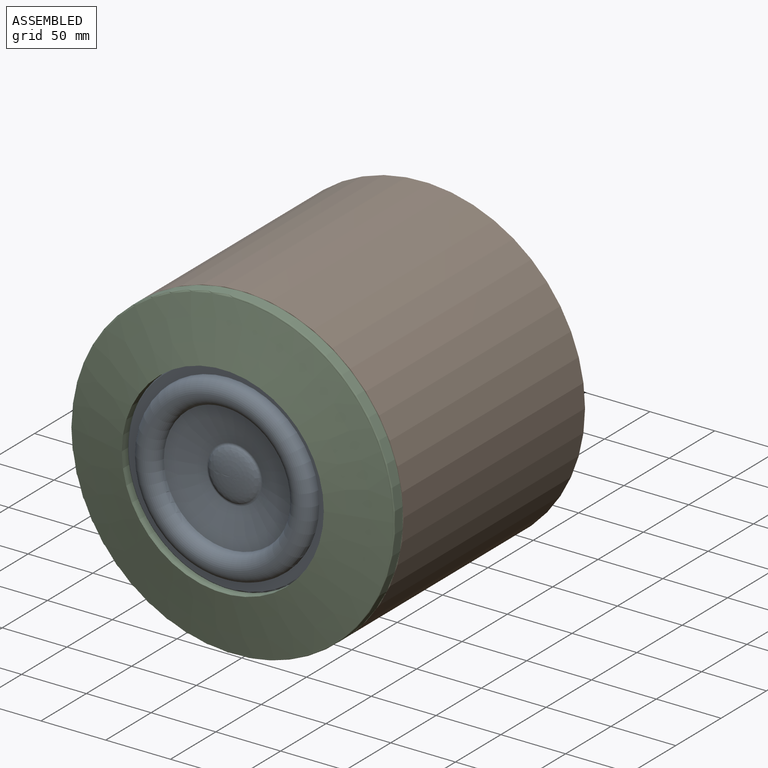
[diagram: assembled view]
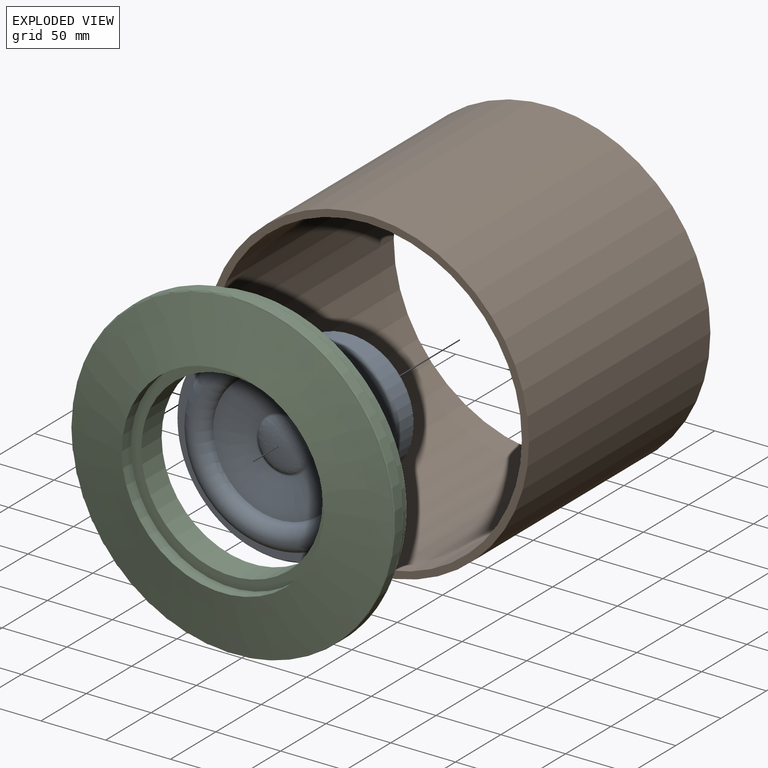
[diagram: exploded view]
GUIDED TOUR — MATED ASSEMBLY (Onshape document 9731b286837dd02903fe42f7, AutoMate assembly 9731b286837dd02903fe42f7_840724efcdd1993359b0b971_bc8ccb5cda9fbec38172dbe1_default)

This assembly has 3 components, labeled P0..P2 below (a component is one placed occurrence of a part; the same part can appear more than once), held together by 2 mates. A mate is a constraint between two components; its type names the relative motion it leaves free:
  FASTENED — locks the two components together rigidly (no relative motion).
Axis/direction vectors are unit vectors and 'through' points are millimeter coordinates, both in the assembly's world frame.

MATES
  1. FASTENED "Fastened 3": P0 <-> P2, direction (0.000, 1.000, 0.000) through (0.00, -10.92, 0.00) mm
  2. FASTENED "Fastened 2": P2 <-> P1, direction (0.000, 1.000, 0.000) through (0.00, 0.00, 0.00) mm

ASSEMBLY ORDER
  1. P2 — the base component [order heuristic]
  2. P0 [order heuristic]
  3. P1 [order heuristic]
Order-tag legend:
  [order heuristic] — this assembly is geometrically interlocked (no collision-free removal order exists), so components are listed in mate-graph order; insertion feasibility is not verified.

Of the 3 components, 2 carry the full construction recipe — the FeatureScript program that regenerates the part's solid from scratch; the rest are supplied as boundary geometry only.
Each toured component is shown spotlighted twice — in the assembled view, then in the exploded view, where a leader line traces a displaced component back to its assembled socket (saturated green if recipe-attached, orange if geometry-only; every other component desaturated gray) — followed by its recipe or geometry summary and the mates that hold it.
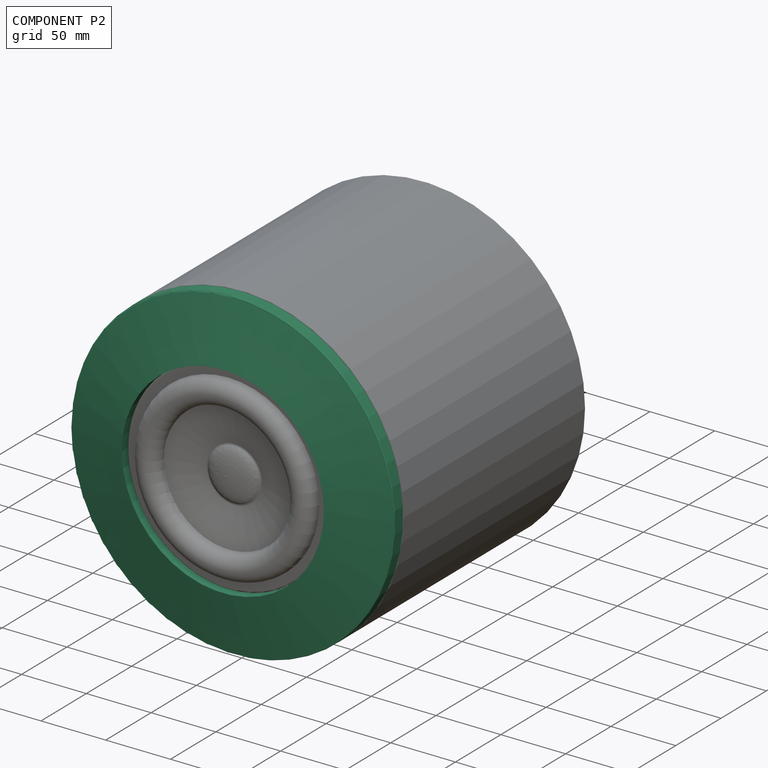
[diagram: component P2 — assembled]
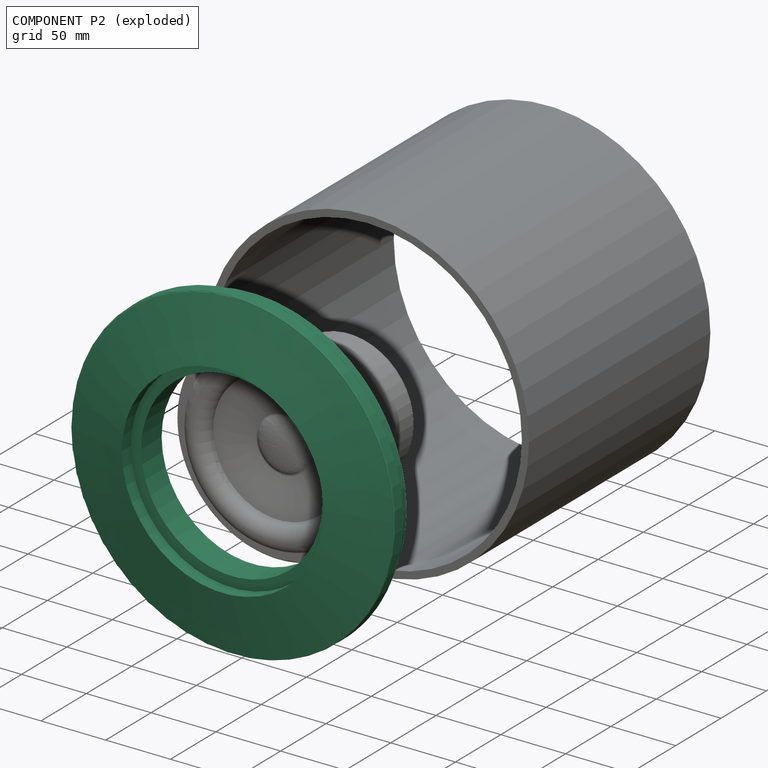
[diagram: component P2 — exploded]
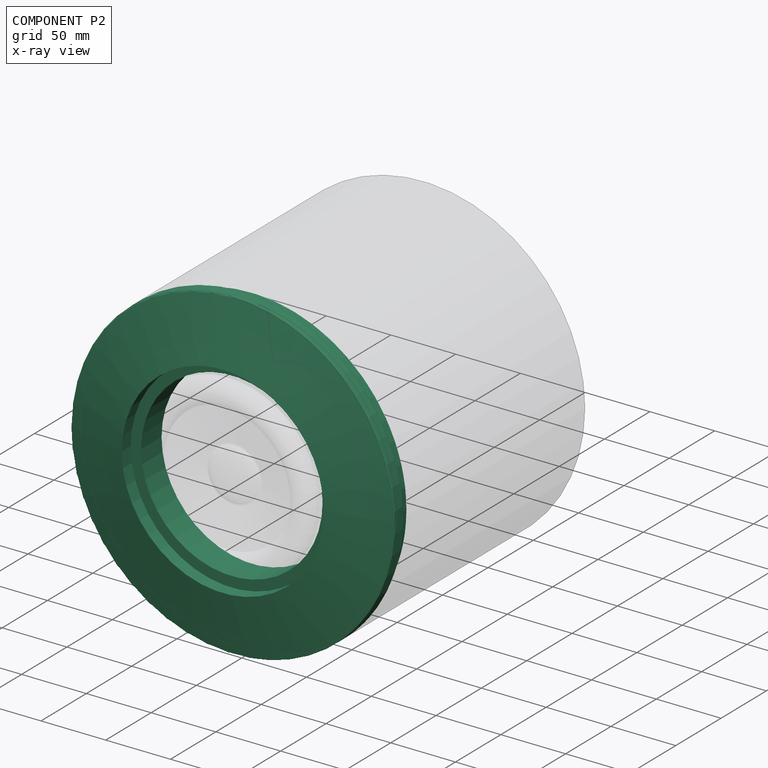
[diagram: component P2 — x-ray view]
COMPONENT P2 — recipe-attached (CADFS 00306409, mesh-verified: the recipe's output STEP matches this component's geometry to below the mesh-comparison resolution (tessellation chordal tolerance ~0.532 mm)).
Held by: FASTENED mate "Fastened 3" to P0; FASTENED mate "Fastened 2" to P1.
Construction recipe (FeatureScript — the CAD program that rebuilds this solid; sketch coordinates are in the units given by the * unit suffixes, e.g. mm):

FeatureScript 1511;
import(path : "onshape/std/geometry.fs", version : "1511.0");
import(path : "onshape/std/common.fs", version : "1511.0");
const mm = millimeter;
const VERTEX = EntityType.VERTEX;
const EDGE = EntityType.EDGE;
const FACE = EntityType.FACE;
const BODY = EntityType.BODY;
function v(x, y){return vector(x, y);}
function OD(order){return orderDisambiguation(order);}
function OSD(set){return originalSetDisambiguation(set);}
function TD(topology){return topologyDisambiguation(topology);}
function TDD(query){return trueDependencyDisambiguation(query);}
function sQuery(a, b, c) {return sketchEntityQuery(a, b, c);}

annotation { "Feature Type Name" : "Feature", "Feature Type Description" : "" }
export const myFeature = defineFeature(function(context is Context, id is Id, definition is map)
    precondition{}
    {
        {
            var Q0;
            Q0=qCreatedBy(makeId("Front.planeOp"),FACE);
            var sketch = newSketch(context, id + "F0", { "sketchPlane" : qUnion([Q0])});
            skLineSegment(sketch, "E0.right", {"start": v(-125, 4) * mm, "end": v(-125, -4) * mm});
            skPoint(sketch, "E0.middle", {"position": v(0, 0) * mm});
            skLineSegment(sketch, "E1.top", {"start": v(-118.53, 16.6) * mm, "end": v(-70, 16.6) * mm});
            skLineSegment(sketch, "E1.right", {"start": v(0, 5) * mm, "end": v(0, 16.6) * mm});
            skPoint(sketch, "E2.endSnap0", {"position": v(0, -5) * mm});
            skArc(sketch, "E3", {"start": v(-119.93, 9) * mm, "mid": v(-119.77, 12.35) * mm, "end": v(-119.52, 15.69) * mm});
            skPoint(sketch, "E4.visualSharp", {"position": v(-125, -5) * mm});
            skArc(sketch, "E4.filletArc", {"start": v(-125, -4) * mm, "mid": v(-124.7, -4.7) * mm, "end": v(-124, -5) * mm});
            skArc(sketch, "E5.filletArc", {"start": v(-124, 5) * mm, "mid": v(-124.7, 4.7) * mm, "end": v(-125, 4) * mm});
            skPoint(sketch, "E0.left.start.orphan", {"position": v(125, 5) * mm});
            skPoint(sketch, "E6.visualSharp", {"position": v(-119.44, 16.6) * mm});
            skArc(sketch, "E6.filletArc", {"start": v(-118.53, 16.6) * mm, "mid": v(-119.2, 16.34) * mm, "end": v(-119.52, 15.69) * mm});
            skLineSegment(sketch, "E7", {"start": v(0, -5) * mm, "end": v(0, -15.92) * mm});
            skLineSegment(sketch, "E8", {"start": v(-78, -15.92) * mm, "end": v(-124, -5) * mm});
            skLineSegment(sketch, "E9", {"start": v(-78, -15.92) * mm, "end": v(-78, -5.92) * mm});
            skLineSegment(sketch, "E10", {"start": v(-70, -5.92) * mm, "end": v(-78, -5.92) * mm});
            skLineSegment(sketch, "E11", {"start": v(0, 5) * mm, "end": v(0, -5) * mm});
            skLineSegment(sketch, "E12", {"start": v(-78, -5.92) * mm, "end": v(-70, -5.92) * mm});
            skLineSegment(sketch, "E13", {"start": v(-70, -5.92) * mm, "end": v(-70, 16.6) * mm});
            skPoint(sketch, "E14.orphan", {"position": v(0, -5.92) * mm});
            skArc(sketch, "E15", {"start": v(-122, 5) * mm, "mid": v(-121, 4) * mm, "end": v(-120, 5) * mm});
            skLineSegment(sketch, "E16", {"start": v(-119.93, 9) * mm, "end": v(-120, 5) * mm});
            skLineSegment(sketch, "E17", {"start": v(-124, 5) * mm, "end": v(-122, 5) * mm});
            skSolve(sketch);
        }
        {
            var Q0;
            Q0=makeQuery(id+"F0.imprint","IMPRINT",FACE,{"disambiguationData":[TD([[makeQuery(id+"F0.imprint","IMPRINT",EDGE,{"derivedFrom":sQuery(id+"F0.wireOp",EDGE,"E0.right")}),1.0]])]});
            var Q1;
            Q1=sQuery(id+"F0.wireOp",EDGE,"E1.right");
            revolve(context, id + "F1", {"entities" : qUnion([Q0]), "axis" : qUnion([Q1]), "revolveType" : RevolveType.FULL});
        }
    });
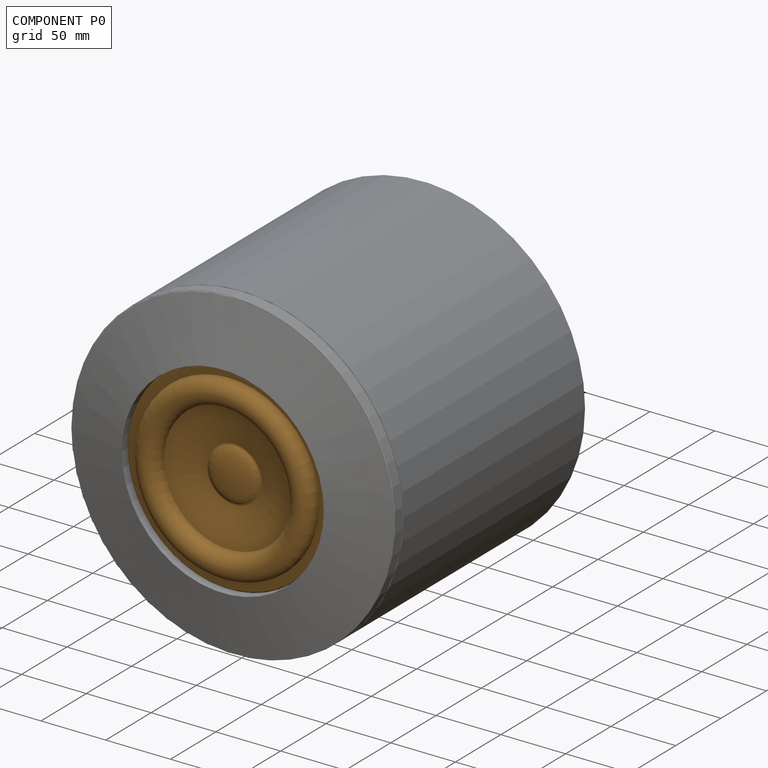
[diagram: component P0 — assembled]
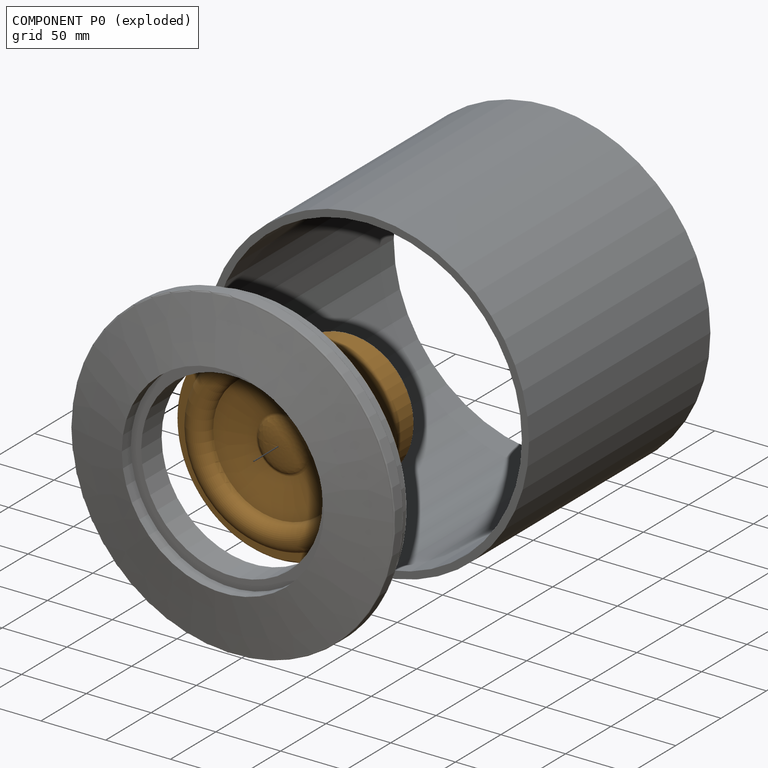
[diagram: component P0 — exploded]
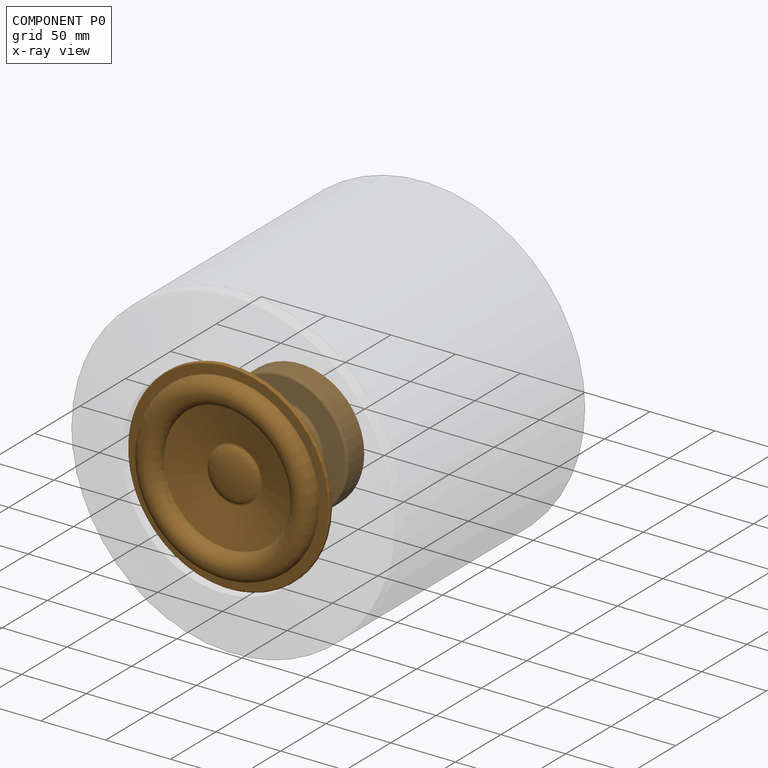
[diagram: component P0 — x-ray view]
COMPONENT P0 — geometry summary (no construction recipe available for this part):
  bounding box: 168.9 x 168.9 x 94.6 mm
  B-rep topology: 1 solid, 24 faces, 87 edges
  volume: 632823 mm^3 (23% of its bounding box)
  symmetry: revolution-symmetric about the z axis through its bounding-box center; mirror-symmetric across its x mid-plane, y mid-plane
Held by: FASTENED mate "Fastened 3" to P2.
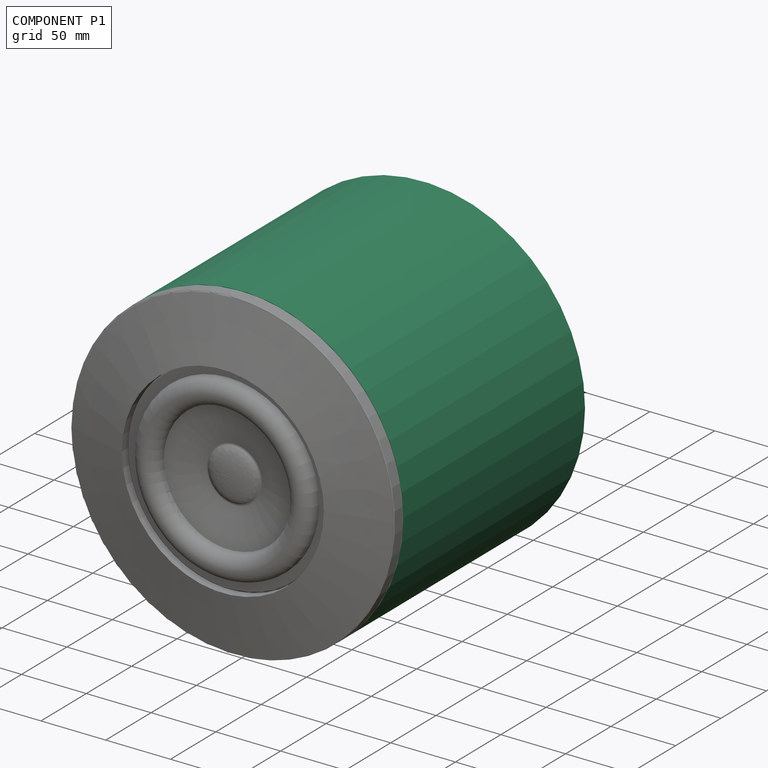
[diagram: component P1 — assembled]
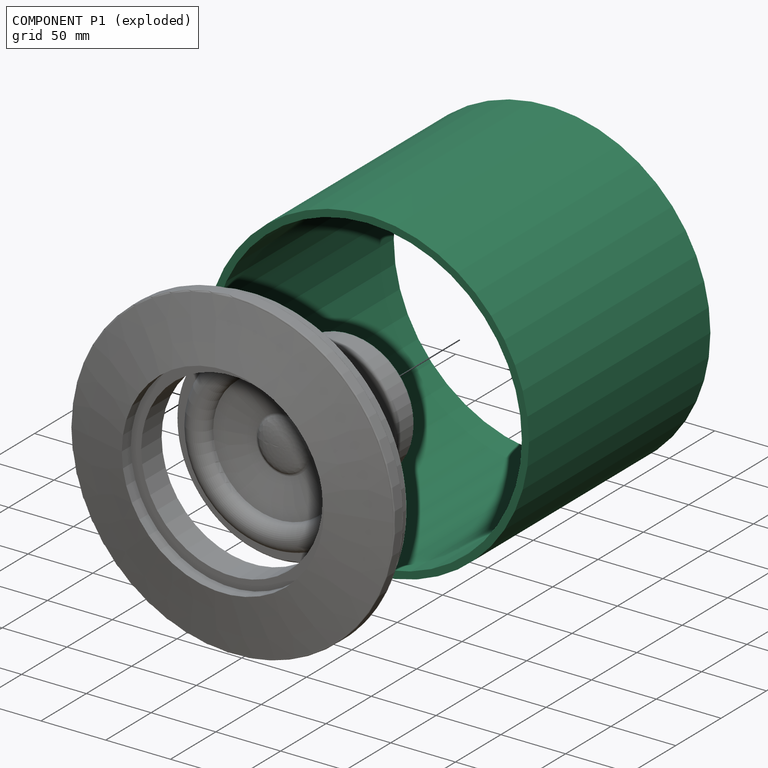
[diagram: component P1 — exploded]
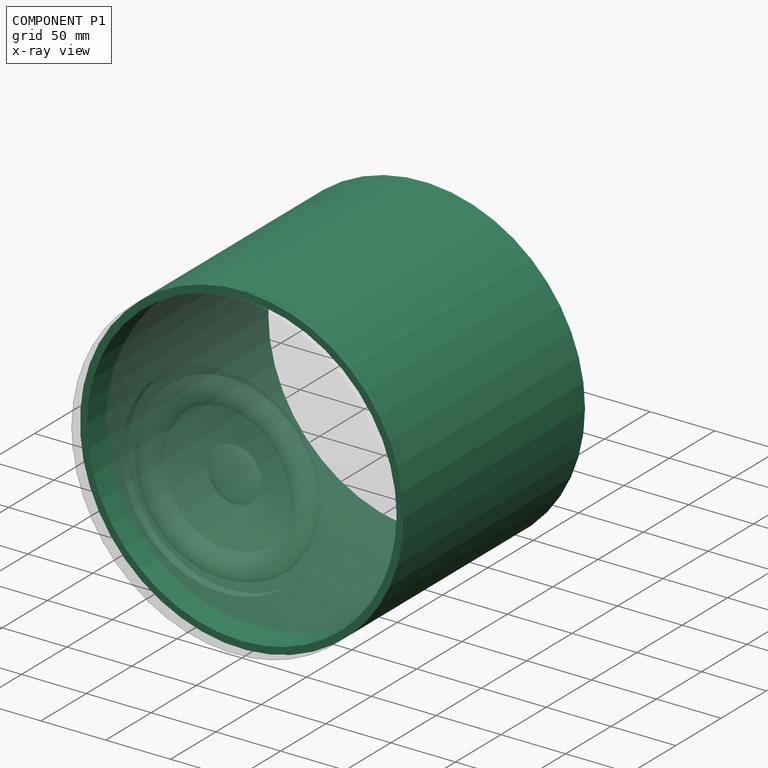
[diagram: component P1 — x-ray view]
COMPONENT P1 — recipe-attached (CADFS 00306408, mesh-verified: the recipe's output STEP matches this component's geometry to below the mesh-comparison resolution (tessellation chordal tolerance ~0.609 mm)).
Held by: FASTENED mate "Fastened 2" to P2.
Construction recipe (FeatureScript — the CAD program that rebuilds this solid; sketch coordinates are in the units given by the * unit suffixes, e.g. mm):

FeatureScript 1511;
import(path : "onshape/std/geometry.fs", version : "1511.0");
import(path : "onshape/std/common.fs", version : "1511.0");
const mm = millimeter;
const VERTEX = EntityType.VERTEX;
const EDGE = EntityType.EDGE;
const FACE = EntityType.FACE;
const BODY = EntityType.BODY;
function v(x, y){return vector(x, y);}
function OD(order){return orderDisambiguation(order);}
function OSD(set){return originalSetDisambiguation(set);}
function TD(topology){return topologyDisambiguation(topology);}
function TDD(query){return trueDependencyDisambiguation(query);}
function sQuery(a, b, c) {return sketchEntityQuery(a, b, c);}

annotation { "Feature Type Name" : "Feature", "Feature Type Description" : "" }
export const myFeature = defineFeature(function(context is Context, id is Id, definition is map)
    precondition{}
    {
        {
            var Q0;
            Q0=qCreatedBy(makeId("Front.planeOp"),FACE);
            var sketch = newSketch(context, id + "F0", { "sketchPlane" : qUnion([Q0])});
            skCircle(sketch, "E0", {"center": v(0, 0) * mm, "radius": 125 * mm});
            skCircle(sketch, "E1.0", {"center": v(0, 0) * mm, "radius": 119.5 * mm});
            skSolve(sketch);
        }
        {
            var Q0;
            Q0 = qSketchRegion(id + "F0", true);
            extrude(context, id + "F1", {"entities" : qUnion([Q0]), "oppositeDirection" : true, "depth" : 200 * mm});
        }
    });
PROVENANCE & LICENSES
Assembly (occurrences, transforms, mates, per-part STEP geometry): AutoMate dataset, Zenodo record 7776208, CC0.
Construction recipes: CADFS (HuggingFace VladPyatov/CADFS, CC-BY-4.0, layered over the ABC dataset), FeatureScript reconstruction programs keyed by ABC model id.
Join: ABC meta listings map ABC model id -> Onshape documentId; within a shared document, parts are matched by geometric signature (bounding-box dims + volume at 0.1% relative tolerance, exact B-rep face/solid counts).
Verification: 2 of this assembly's 3 components carry a recipe attachment, and every attachment is mesh-verified: the CADFS STEP and the AutoMate member STEP were compared as meshes in their shared local frame (symmetric sampled-point-to-mesh distance); worst across the 2 attachments: below the mesh-comparison resolution (tessellation chordal tolerance ~0.609 mm) on a 406 mm part.
Renders: orthographic iso camera (az 35 / el 25); the floor grid conveys scale (grid pitch printed in each image; no ruler). In the exploded view each component is displaced by its stored offset vector: the offsets alone carry the explosion direction (mate normal/axis signs are not orientation cues and do not encode it), and separation distances are assigned per mate-chain, not proportionally to assembly-order depth.
